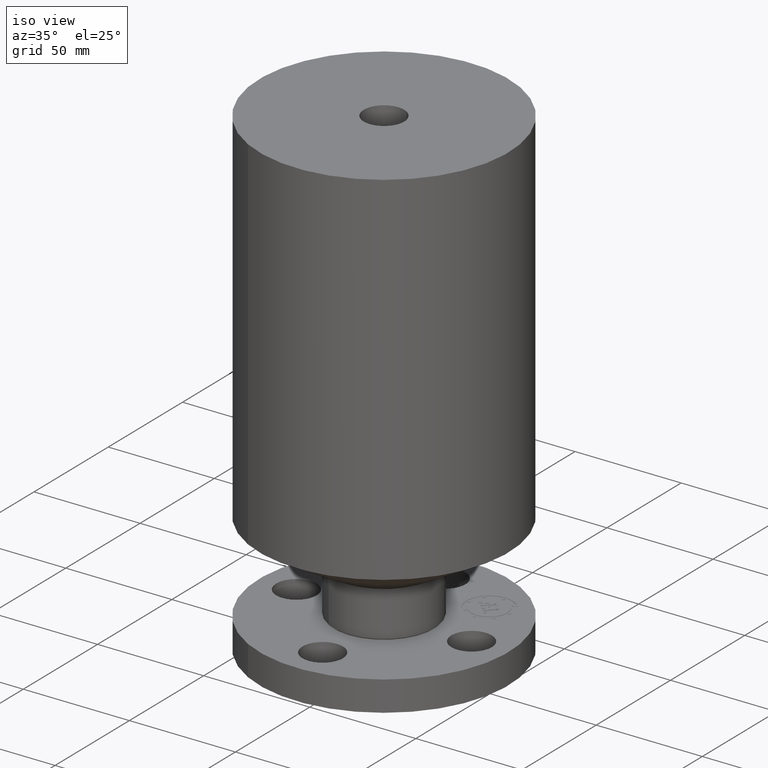
[diagram: clean part render]
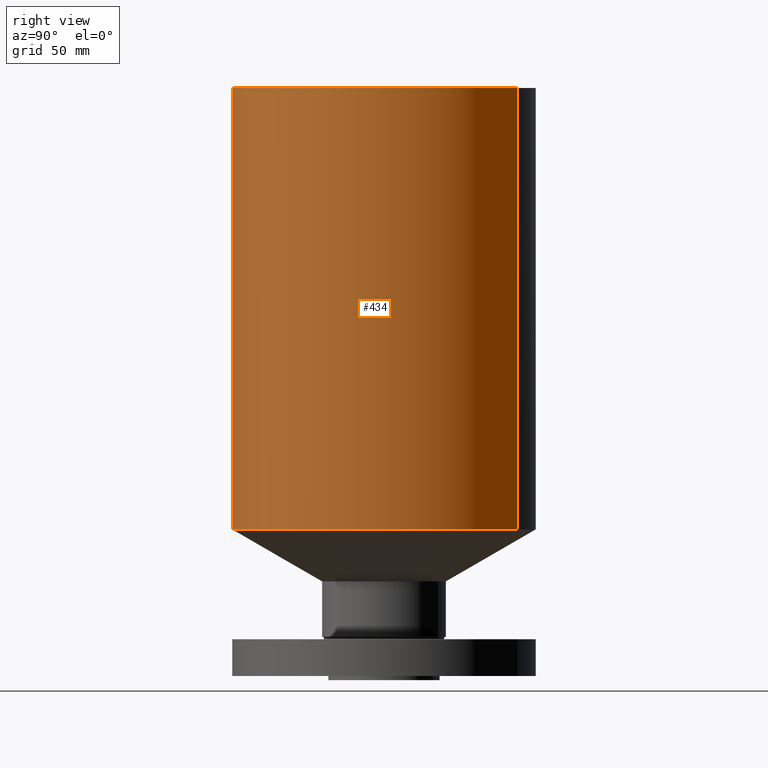
[diagram: tour spotlight — one face highlighted and labeled with its STEP entity id]
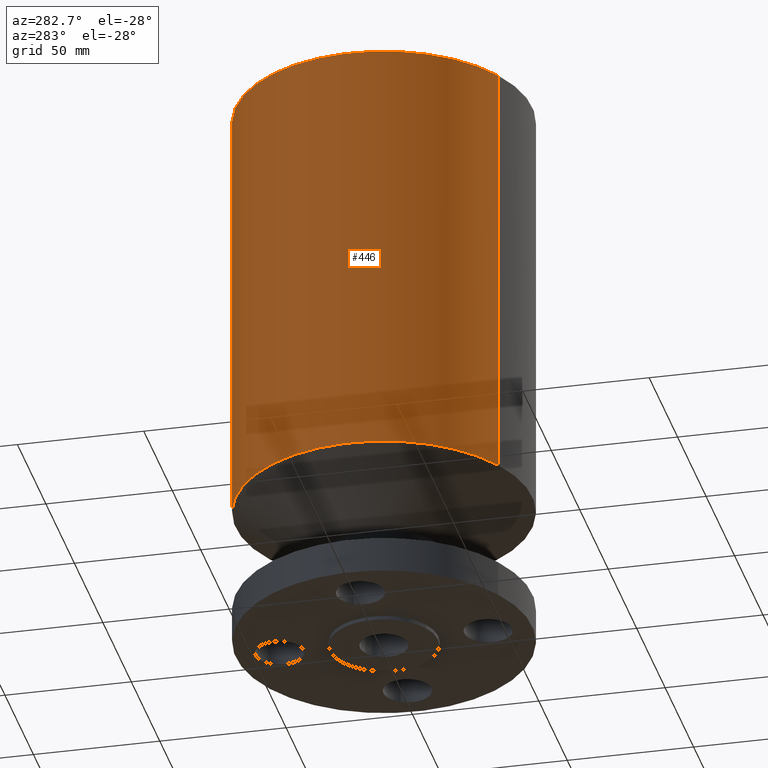
[diagram: tour spotlight — one face highlighted and labeled with its STEP entity id]
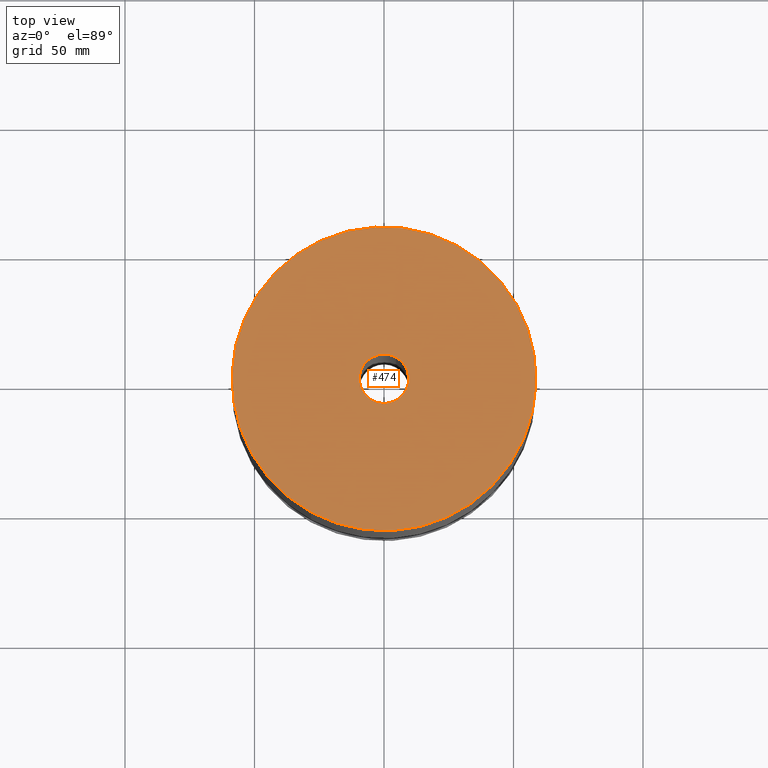
[diagram: tour spotlight — one face highlighted and labeled with its STEP entity id]
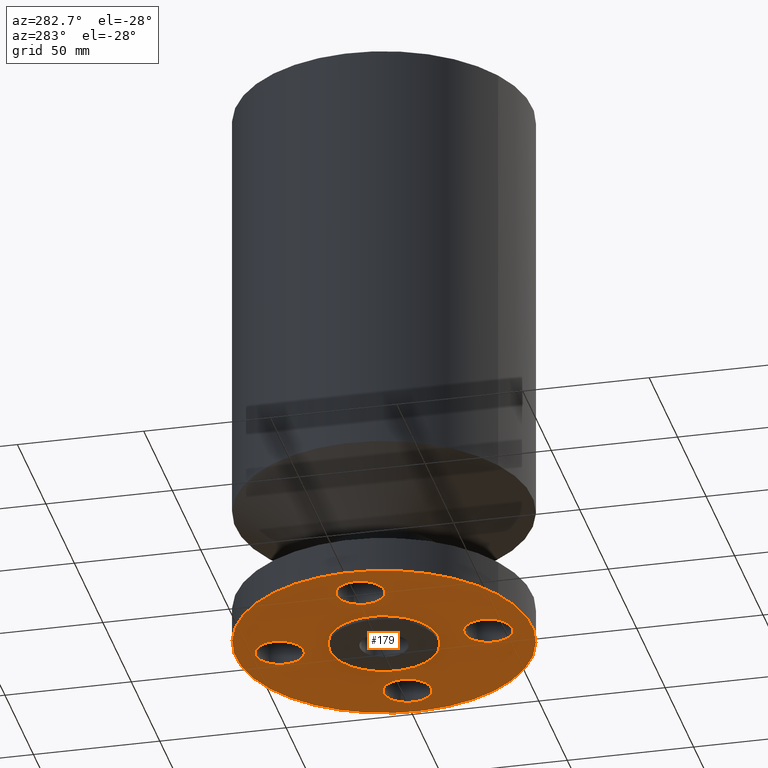
[diagram: tour spotlight — one face highlighted and labeled with its STEP entity id]
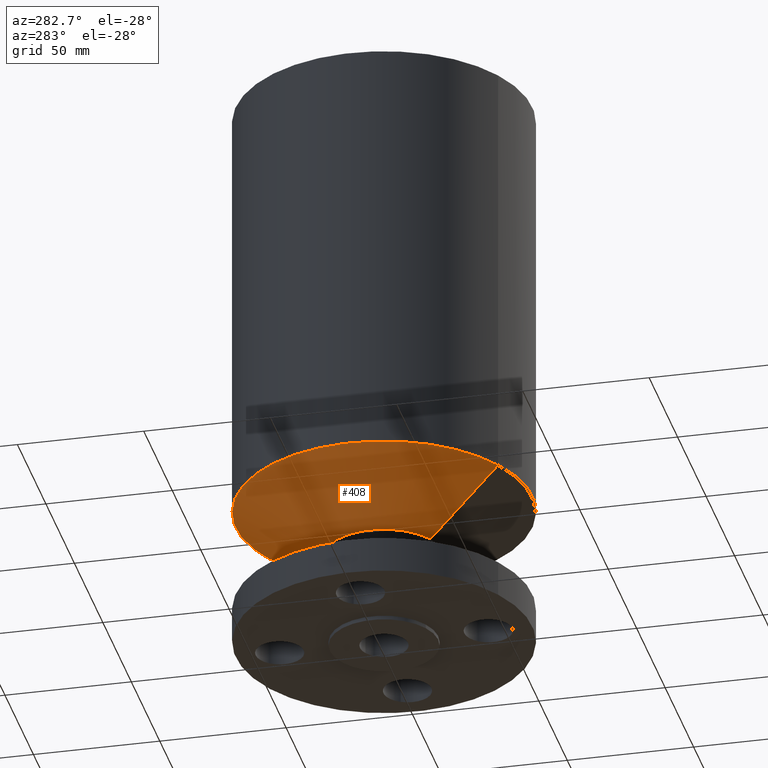
[diagram: tour spotlight — one face highlighted and labeled with its STEP entity id]
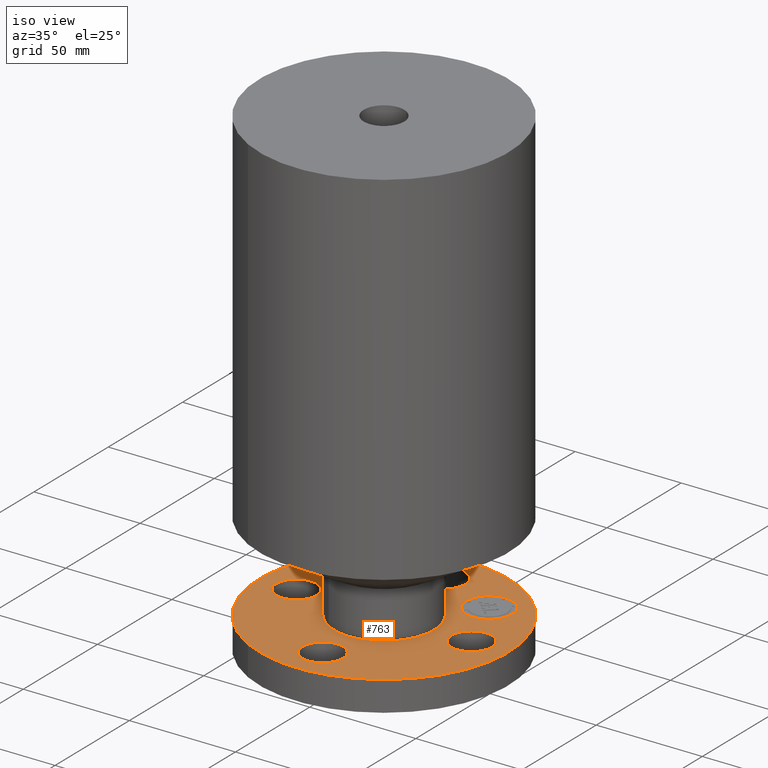
[diagram: tour spotlight — one face highlighted and labeled with its STEP entity id]
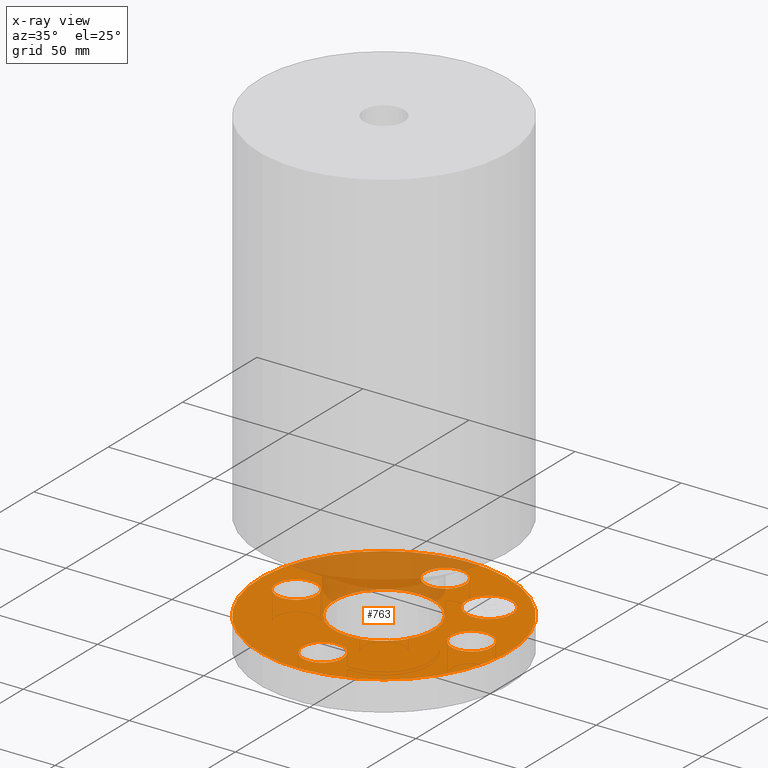
[diagram: x-ray of the same camera — body ghosted, this tour face saturated]
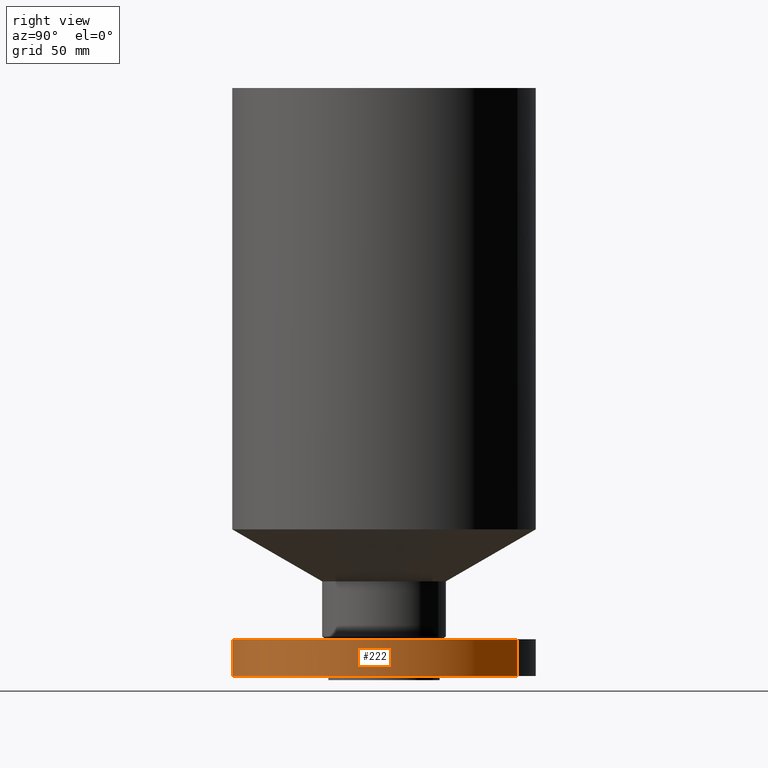
[diagram: tour spotlight — one face highlighted and labeled with its STEP entity id]
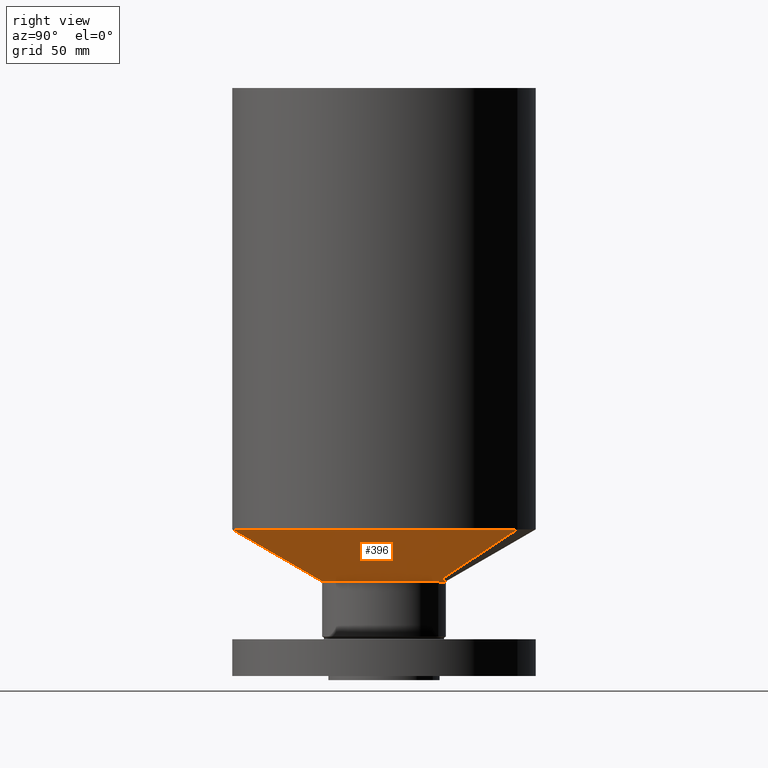
[diagram: tour spotlight — one face highlighted and labeled with its STEP entity id]
A machine part: a face-by-face anatomy tour. The part has 413 B-rep faces; the first image is the clean iso view, then the 8 largest visible faces are spotlighted one at a time (largest first), each with its STEP entity span.

Face 1 — right view, entity #434. In plain terms, the highlighted cylindrical surface (partial cylindrical patch) has radius 58.674 mm, axis along (0, 0, -1).
Definition (entity closure, byte-faithful):
#183=AXIS2_PLACEMENT_3D('Cylinder Axis2P3D',#180,#181,#182) ;
#380=AXIS2_PLACEMENT_3D('Circle Axis2P3D',#378,#379,$) ;
#418=AXIS2_PLACEMENT_3D('Circle Axis2P3D',#416,#417,$) ;
#180=CARTESIAN_POINT('Axis2P3D Location',(0.,0.,4.43750000002)) ;
#375=CARTESIAN_POINT('Vertex',(1.10747299418,2.02721571797,2.2284698688)) ;
#378=CARTESIAN_POINT('Axis2P3D Location',(0.,0.,2.2284698688)) ;
#382=CARTESIAN_POINT('Vertex',(-1.10747299418,-2.02721571797,2.2284698688)) ;
#409=CARTESIAN_POINT('Line Origine',(1.10747299418,2.02721571797,5.58298493442)) ;
#413=CARTESIAN_POINT('Vertex',(1.10747299418,2.02721571797,8.93750000004)) ;
#416=CARTESIAN_POINT('Axis2P3D Location',(0.,0.,8.93750000004)) ;
#420=CARTESIAN_POINT('Vertex',(-1.10747299418,-2.02721571797,8.93750000004)) ;
#423=CARTESIAN_POINT('Line Origine',(-1.10747299418,-2.02721571797,5.58298493442)) ;
#181=DIRECTION('Axis2P3D Direction',(0.,0.,-0.0393700787402)) ;
#182=DIRECTION('Axis2P3D XDirection',(-0.0188750212049,-0.0345504945626,0.)) ;
#379=DIRECTION('Axis2P3D Direction',(-0.,0.,0.0393700787402)) ;
#410=DIRECTION('Vector Direction',(0.,0.,-0.0393700787402)) ;
#417=DIRECTION('Axis2P3D Direction',(0.,0.,-0.0393700787402)) ;
#424=DIRECTION('Vector Direction',(0.,0.,-0.0393700787402)) ;
#411=VECTOR('Line Direction',#410,0.0393700787402) ;
#425=VECTOR('Line Direction',#424,0.0393700787402) ;
#429=ORIENTED_EDGE('',*,*,#384,.F.) ;
#430=ORIENTED_EDGE('',*,*,#415,.T.) ;
#431=ORIENTED_EDGE('',*,*,#422,.T.) ;
#432=ORIENTED_EDGE('',*,*,#427,.F.) ;
#434=ADVANCED_FACE('PartBody',(#433),#184,.T.) ;
#381=CIRCLE('generated circle',#380,2.31000000001) ;
#419=CIRCLE('generated circle',#418,2.31000000001) ;
#184=CYLINDRICAL_SURFACE('generated cylinder',#183,2.31000000001) ;
#384=EDGE_CURVE('',#376,#383,#381,.F.) ;
#415=EDGE_CURVE('',#376,#414,#412,.F.) ;
#422=EDGE_CURVE('',#414,#421,#419,.T.) ;
#427=EDGE_CURVE('',#383,#421,#426,.F.) ;
#428=EDGE_LOOP('',(#429,#430,#431,#432)) ;
#433=FACE_OUTER_BOUND('',#428,.T.) ;
#412=LINE('Line',#409,#411) ;
#426=LINE('Line',#423,#425) ;
#376=VERTEX_POINT('',#375) ;
#383=VERTEX_POINT('',#382) ;
#414=VERTEX_POINT('',#413) ;
#421=VERTEX_POINT('',#420) ;

Face 2 — auxiliary view, entity #446. In plain terms, the highlighted cylindrical surface (partial cylindrical patch) has radius 58.674 mm, axis along (0, 0, -1).
Definition (entity closure, byte-faithful):
#183=AXIS2_PLACEMENT_3D('Cylinder Axis2P3D',#180,#181,#182) ;
#399=AXIS2_PLACEMENT_3D('Circle Axis2P3D',#397,#398,$) ;
#437=AXIS2_PLACEMENT_3D('Circle Axis2P3D',#435,#436,$) ;
#180=CARTESIAN_POINT('Axis2P3D Location',(0.,0.,4.43750000002)) ;
#375=CARTESIAN_POINT('Vertex',(1.10747299418,2.02721571797,2.2284698688)) ;
#382=CARTESIAN_POINT('Vertex',(-1.10747299418,-2.02721571797,2.2284698688)) ;
#397=CARTESIAN_POINT('Axis2P3D Location',(0.,0.,2.2284698688)) ;
#409=CARTESIAN_POINT('Line Origine',(1.10747299418,2.02721571797,5.58298493442)) ;
#413=CARTESIAN_POINT('Vertex',(1.10747299418,2.02721571797,8.93750000004)) ;
#420=CARTESIAN_POINT('Vertex',(-1.10747299418,-2.02721571797,8.93750000004)) ;
#423=CARTESIAN_POINT('Line Origine',(-1.10747299418,-2.02721571797,5.58298493442)) ;
#435=CARTESIAN_POINT('Axis2P3D Location',(0.,0.,8.93750000004)) ;
#181=DIRECTION('Axis2P3D Direction',(0.,0.,-0.0393700787402)) ;
#182=DIRECTION('Axis2P3D XDirection',(-0.0188750212049,-0.0345504945626,0.)) ;
#398=DIRECTION('Axis2P3D Direction',(-0.,0.,0.0393700787402)) ;
#410=DIRECTION('Vector Direction',(0.,0.,-0.0393700787402)) ;
#424=DIRECTION('Vector Direction',(0.,0.,-0.0393700787402)) ;
#436=DIRECTION('Axis2P3D Direction',(0.,0.,-0.0393700787402)) ;
#411=VECTOR('Line Direction',#410,0.0393700787402) ;
#425=VECTOR('Line Direction',#424,0.0393700787402) ;
#441=ORIENTED_EDGE('',*,*,#401,.F.) ;
#442=ORIENTED_EDGE('',*,*,#427,.T.) ;
#443=ORIENTED_EDGE('',*,*,#439,.T.) ;
#444=ORIENTED_EDGE('',*,*,#415,.F.) ;
#446=ADVANCED_FACE('PartBody',(#445),#184,.T.) ;
#400=CIRCLE('generated circle',#399,2.31000000001) ;
#438=CIRCLE('generated circle',#437,2.31000000001) ;
#184=CYLINDRICAL_SURFACE('generated cylinder',#183,2.31000000001) ;
#401=EDGE_CURVE('',#383,#376,#400,.F.) ;
#415=EDGE_CURVE('',#376,#414,#412,.F.) ;
#427=EDGE_CURVE('',#383,#421,#426,.F.) ;
#439=EDGE_CURVE('',#421,#414,#438,.T.) ;
#440=EDGE_LOOP('',(#441,#442,#443,#444)) ;
#445=FACE_OUTER_BOUND('',#440,.T.) ;
#412=LINE('Line',#409,#411) ;
#426=LINE('Line',#423,#425) ;
#376=VERTEX_POINT('',#375) ;
#383=VERTEX_POINT('',#382) ;
#414=VERTEX_POINT('',#413) ;
#421=VERTEX_POINT('',#420) ;

Face 3 — top view, entity #474. In plain terms, the highlighted planar face has unit normal (0, 0, -1).
Definition (entity closure, byte-faithful):
#418=AXIS2_PLACEMENT_3D('Circle Axis2P3D',#416,#417,$) ;
#437=AXIS2_PLACEMENT_3D('Circle Axis2P3D',#435,#436,$) ;
#450=AXIS2_PLACEMENT_3D('Plane Axis2P3D',#447,#448,#449) ;
#458=AXIS2_PLACEMENT_3D('Circle Axis2P3D',#456,#457,$) ;
#467=AXIS2_PLACEMENT_3D('Circle Axis2P3D',#465,#466,$) ;
#413=CARTESIAN_POINT('Vertex',(1.10747299418,2.02721571797,8.93750000004)) ;
#416=CARTESIAN_POINT('Axis2P3D Location',(0.,0.,8.93750000004)) ;
#420=CARTESIAN_POINT('Vertex',(-1.10747299418,-2.02721571797,8.93750000004)) ;
#435=CARTESIAN_POINT('Axis2P3D Location',(0.,0.,8.93750000004)) ;
#447=CARTESIAN_POINT('Axis2P3D Location',(0.,2.31000000001,8.93750000004)) ;
#456=CARTESIAN_POINT('Axis2P3D Location',(0.,0.,8.93750000004)) ;
#460=CARTESIAN_POINT('Vertex',(-0.179784576977,-0.32909346071,8.93750000004)) ;
#462=CARTESIAN_POINT('Vertex',(0.179784576977,0.32909346071,8.93750000004)) ;
#465=CARTESIAN_POINT('Axis2P3D Location',(0.,0.,8.93750000004)) ;
#417=DIRECTION('Axis2P3D Direction',(0.,0.,-0.0393700787402)) ;
#436=DIRECTION('Axis2P3D Direction',(0.,0.,-0.0393700787402)) ;
#448=DIRECTION('Axis2P3D Direction',(0.,0.,-0.0393700787402)) ;
#449=DIRECTION('Axis2P3D XDirection',(0.0393700787402,0.,0.)) ;
#457=DIRECTION('Axis2P3D Direction',(0.,0.,-0.0393700787402)) ;
#466=DIRECTION('Axis2P3D Direction',(0.,0.,-0.0393700787402)) ;
#453=ORIENTED_EDGE('',*,*,#422,.F.) ;
#454=ORIENTED_EDGE('',*,*,#439,.F.) ;
#471=ORIENTED_EDGE('',*,*,#464,.T.) ;
#472=ORIENTED_EDGE('',*,*,#469,.T.) ;
#473=FACE_BOUND('',#470,.T.) ;
#474=ADVANCED_FACE('PartBody',(#455,#473),#451,.F.) ;
#419=CIRCLE('generated circle',#418,2.31000000001) ;
#438=CIRCLE('generated circle',#437,2.31000000001) ;
#459=CIRCLE('generated circle',#458,0.375000000001) ;
#468=CIRCLE('generated circle',#467,0.375000000001) ;
#422=EDGE_CURVE('',#414,#421,#419,.T.) ;
#439=EDGE_CURVE('',#421,#414,#438,.T.) ;
#464=EDGE_CURVE('',#461,#463,#459,.T.) ;
#469=EDGE_CURVE('',#463,#461,#468,.T.) ;
#452=EDGE_LOOP('',(#453,#454)) ;
#470=EDGE_LOOP('',(#471,#472)) ;
#455=FACE_OUTER_BOUND('',#452,.T.) ;
#451=PLANE('',#450) ;
#414=VERTEX_POINT('',#413) ;
#421=VERTEX_POINT('',#420) ;
#461=VERTEX_POINT('',#460) ;
#463=VERTEX_POINT('',#462) ;

Face 4 — auxiliary view, entity #179. In plain terms, the highlighted planar face has unit normal (0, 0, -1).
Definition (entity closure, byte-faithful):
#51=AXIS2_PLACEMENT_3D('Circle Axis2P3D',#49,#50,$) ;
#78=AXIS2_PLACEMENT_3D('Plane Axis2P3D',#75,#76,#77) ;
#82=AXIS2_PLACEMENT_3D('Circle Axis2P3D',#80,#81,$) ;
#91=AXIS2_PLACEMENT_3D('Circle Axis2P3D',#89,#90,$) ;
#100=AXIS2_PLACEMENT_3D('Circle Axis2P3D',#98,#99,$) ;
#109=AXIS2_PLACEMENT_3D('Circle Axis2P3D',#107,#108,$) ;
#118=AXIS2_PLACEMENT_3D('Circle Axis2P3D',#116,#117,$) ;
#127=AXIS2_PLACEMENT_3D('Circle Axis2P3D',#125,#126,$) ;
#136=AXIS2_PLACEMENT_3D('Circle Axis2P3D',#134,#135,$) ;
#145=AXIS2_PLACEMENT_3D('Circle Axis2P3D',#143,#144,$) ;
#154=AXIS2_PLACEMENT_3D('Circle Axis2P3D',#152,#153,$) ;
#163=AXIS2_PLACEMENT_3D('Circle Axis2P3D',#161,#162,$) ;
#172=AXIS2_PLACEMENT_3D('Circle Axis2P3D',#170,#171,$) ;
#46=CARTESIAN_POINT('Vertex',(1.95409346072,0.179784576977,2.2401153548E-016)) ;
#49=CARTESIAN_POINT('Axis2P3D Location',(1.62500000001,0.,0.)) ;
#53=CARTESIAN_POINT('Vertex',(1.2959065393,-0.179784576977,2.2401153548E-016)) ;
#75=CARTESIAN_POINT('Axis2P3D Location',(0.,0.845000000003,0.)) ;
#80=CARTESIAN_POINT('Axis2P3D Location',(0.,0.,0.)) ;
#84=CARTESIAN_POINT('Vertex',(-1.10747299418,-2.02721571797,-5.59482469102E-016)) ;
#86=CARTESIAN_POINT('Vertex',(1.10747299418,2.02721571797,-5.59482469102E-016)) ;
#89=CARTESIAN_POINT('Axis2P3D Location',(0.,0.,0.)) ;
#98=CARTESIAN_POINT('Axis2P3D Location',(1.62500000001,0.,0.)) ;
#107=CARTESIAN_POINT('Axis2P3D Location',(0.,0.,0.)) ;
#111=CARTESIAN_POINT('Vertex',(0.405114580122,0.7415572648,0.)) ;
#113=CARTESIAN_POINT('Vertex',(-0.405114580122,-0.7415572648,0.)) ;
#116=CARTESIAN_POINT('Axis2P3D Location',(0.,0.,0.)) ;
#125=CARTESIAN_POINT('Axis2P3D Location',(-2.44773580232E-016,-1.62500000001,0.)) ;
#129=CARTESIAN_POINT('Vertex',(0.179784576977,-1.95409346072,0.)) ;
#131=CARTESIAN_POINT('Vertex',(-0.179784576977,-1.2959065393,0.)) ;
#134=CARTESIAN_POINT('Axis2P3D Location',(-1.39870617276E-016,-1.62500000001,0.)) ;
#143=CARTESIAN_POINT('Axis2P3D Location',(-1.62500000001,-1.39870617276E-016,0.)) ;
#147=CARTESIAN_POINT('Vertex',(-1.95409346072,-0.179784576977,0.)) ;
#149=CARTESIAN_POINT('Vertex',(-1.2959065393,0.179784576977,0.)) ;
#152=CARTESIAN_POINT('Axis2P3D Location',(-1.62500000001,-4.19611851827E-016,0.)) ;
#161=CARTESIAN_POINT('Axis2P3D Location',(-2.09805925913E-016,1.62500000001,0.)) ;
#165=CARTESIAN_POINT('Vertex',(-0.179784576977,1.95409346072,0.)) ;
#167=CARTESIAN_POINT('Vertex',(0.179784576977,1.2959065393,0.)) ;
#170=CARTESIAN_POINT('Axis2P3D Location',(-3.49676543189E-016,1.62500000001,0.)) ;
#50=DIRECTION('Axis2P3D Direction',(0.,-0.,0.0393700787402)) ;
#76=DIRECTION('Axis2P3D Direction',(0.,0.,-0.0393700787402)) ;
#77=DIRECTION('Axis2P3D XDirection',(0.0393700787402,0.,0.)) ;
#81=DIRECTION('Axis2P3D Direction',(0.,0.,-0.0393700787402)) ;
#90=DIRECTION('Axis2P3D Direction',(0.,0.,-0.0393700787402)) ;
#99=DIRECTION('Axis2P3D Direction',(0.,0.,-0.0393700787402)) ;
#108=DIRECTION('Axis2P3D Direction',(0.,0.,-0.0393700787402)) ;
#117=DIRECTION('Axis2P3D Direction',(0.,0.,-0.0393700787402)) ;
#126=DIRECTION('Axis2P3D Direction',(0.,0.,-0.0393700787402)) ;
#135=DIRECTION('Axis2P3D Direction',(0.,0.,-0.0393700787402)) ;
#144=DIRECTION('Axis2P3D Direction',(0.,0.,-0.0393700787402)) ;
#153=DIRECTION('Axis2P3D Direction',(0.,0.,-0.0393700787402)) ;
#162=DIRECTION('Axis2P3D Direction',(0.,0.,-0.0393700787402)) ;
#171=DIRECTION('Axis2P3D Direction',(0.,0.,-0.0393700787402)) ;
#95=ORIENTED_EDGE('',*,*,#88,.T.) ;
#96=ORIENTED_EDGE('',*,*,#93,.T.) ;
#104=ORIENTED_EDGE('',*,*,#102,.F.) ;
#105=ORIENTED_EDGE('',*,*,#55,.F.) ;
#122=ORIENTED_EDGE('',*,*,#115,.F.) ;
#123=ORIENTED_EDGE('',*,*,#120,.F.) ;
#140=ORIENTED_EDGE('',*,*,#133,.F.) ;
#141=ORIENTED_EDGE('',*,*,#138,.F.) ;
#158=ORIENTED_EDGE('',*,*,#151,.F.) ;
#159=ORIENTED_EDGE('',*,*,#156,.F.) ;
#176=ORIENTED_EDGE('',*,*,#169,.F.) ;
#177=ORIENTED_EDGE('',*,*,#174,.F.) ;
#106=FACE_BOUND('',#103,.T.) ;
#124=FACE_BOUND('',#121,.T.) ;
#142=FACE_BOUND('',#139,.T.) ;
#160=FACE_BOUND('',#157,.T.) ;
#178=FACE_BOUND('',#175,.T.) ;
#179=ADVANCED_FACE('PartBody',(#97,#106,#124,#142,#160,#178),#79,.T.) ;
#52=CIRCLE('generated circle',#51,0.375000000001) ;
#83=CIRCLE('generated circle',#82,2.31000000001) ;
#92=CIRCLE('generated circle',#91,2.31000000001) ;
#101=CIRCLE('generated circle',#100,0.375000000001) ;
#110=CIRCLE('generated circle',#109,0.845000000003) ;
#119=CIRCLE('generated circle',#118,0.845000000003) ;
#128=CIRCLE('generated circle',#127,0.375000000001) ;
#137=CIRCLE('generated circle',#136,0.375000000001) ;
#146=CIRCLE('generated circle',#145,0.375000000002) ;
#155=CIRCLE('generated circle',#154,0.375000000002) ;
#164=CIRCLE('generated circle',#163,0.375000000001) ;
#173=CIRCLE('generated circle',#172,0.375000000001) ;
#55=EDGE_CURVE('',#47,#54,#52,.F.) ;
#88=EDGE_CURVE('',#85,#87,#83,.T.) ;
#93=EDGE_CURVE('',#87,#85,#92,.T.) ;
#102=EDGE_CURVE('',#54,#47,#101,.T.) ;
#115=EDGE_CURVE('',#112,#114,#110,.T.) ;
#120=EDGE_CURVE('',#114,#112,#119,.T.) ;
#133=EDGE_CURVE('',#130,#132,#128,.T.) ;
#138=EDGE_CURVE('',#132,#130,#137,.T.) ;
#151=EDGE_CURVE('',#148,#150,#146,.T.) ;
#156=EDGE_CURVE('',#150,#148,#155,.T.) ;
#169=EDGE_CURVE('',#166,#168,#164,.T.) ;
#174=EDGE_CURVE('',#168,#166,#173,.T.) ;
#94=EDGE_LOOP('',(#95,#96)) ;
#103=EDGE_LOOP('',(#104,#105)) ;
#121=EDGE_LOOP('',(#122,#123)) ;
#139=EDGE_LOOP('',(#140,#141)) ;
#157=EDGE_LOOP('',(#158,#159)) ;
#175=EDGE_LOOP('',(#176,#177)) ;
#97=FACE_OUTER_BOUND('',#94,.T.) ;
#79=PLANE('',#78) ;
#47=VERTEX_POINT('',#46) ;
#54=VERTEX_POINT('',#53) ;
#85=VERTEX_POINT('',#84) ;
#87=VERTEX_POINT('',#86) ;
#112=VERTEX_POINT('',#111) ;
#114=VERTEX_POINT('',#113) ;
#130=VERTEX_POINT('',#129) ;
#132=VERTEX_POINT('',#131) ;
#148=VERTEX_POINT('',#147) ;
#150=VERTEX_POINT('',#149) ;
#166=VERTEX_POINT('',#165) ;
#168=VERTEX_POINT('',#167) ;

Face 5 — auxiliary view, entity #408. In plain terms, the highlighted conical surface has half-angle 60 deg.
Definition (entity closure, byte-faithful):
#356=AXIS2_PLACEMENT_3D('Circle Axis2P3D',#354,#355,$) ;
#369=AXIS2_PLACEMENT_3D('Cone Axis2P3D',#366,#367,#368) ;
#399=AXIS2_PLACEMENT_3D('Circle Axis2P3D',#397,#398,$) ;
#332=CARTESIAN_POINT('Vertex',(0.45066000629,0.82492760818,1.43750000001)) ;
#339=CARTESIAN_POINT('Vertex',(-0.45066000629,-0.82492760818,1.43750000001)) ;
#354=CARTESIAN_POINT('Axis2P3D Location',(0.,0.,1.43750000001)) ;
#366=CARTESIAN_POINT('Axis2P3D Location',(0.,0.,1.43750000001)) ;
#371=CARTESIAN_POINT('Line Origine',(0.779066500235,1.42607166308,1.8329849344)) ;
#375=CARTESIAN_POINT('Vertex',(1.10747299418,2.02721571797,2.2284698688)) ;
#382=CARTESIAN_POINT('Vertex',(-1.10747299418,-2.02721571797,2.2284698688)) ;
#385=CARTESIAN_POINT('Line Origine',(-0.779066500235,-1.42607166308,1.8329849344)) ;
#397=CARTESIAN_POINT('Axis2P3D Location',(0.,0.,2.2284698688)) ;
#355=DIRECTION('Axis2P3D Direction',(0.,0.,-0.0393700787402)) ;
#367=DIRECTION('Axis2P3D Direction',(-0.,-0.,0.0393700787402)) ;
#368=DIRECTION('Axis2P3D XDirection',(0.0188750212049,0.0345504945626,0.)) ;
#372=DIRECTION('Vector Direction',(0.0163462478604,0.0299216060045,0.0196850393701)) ;
#386=DIRECTION('Vector Direction',(-0.0163462478604,-0.0299216060045,0.0196850393701)) ;
#398=DIRECTION('Axis2P3D Direction',(-0.,0.,0.0393700787402)) ;
#373=VECTOR('Line Direction',#372,0.0393700787402) ;
#387=VECTOR('Line Direction',#386,0.0393700787402) ;
#403=ORIENTED_EDGE('',*,*,#358,.F.) ;
#404=ORIENTED_EDGE('',*,*,#389,.T.) ;
#405=ORIENTED_EDGE('',*,*,#401,.T.) ;
#406=ORIENTED_EDGE('',*,*,#377,.F.) ;
#408=ADVANCED_FACE('PartBody',(#407),#370,.T.) ;
#357=CIRCLE('generated circle',#356,0.940000000004) ;
#400=CIRCLE('generated circle',#399,2.31000000001) ;
#370=CONICAL_SURFACE('Cone',#369,0.940000000004,1.0471975512) ;
#358=EDGE_CURVE('',#340,#333,#357,.T.) ;
#377=EDGE_CURVE('',#333,#376,#374,.T.) ;
#389=EDGE_CURVE('',#340,#383,#388,.T.) ;
#401=EDGE_CURVE('',#383,#376,#400,.F.) ;
#402=EDGE_LOOP('',(#403,#404,#405,#406)) ;
#407=FACE_OUTER_BOUND('',#402,.T.) ;
#374=LINE('Line',#371,#373) ;
#388=LINE('Line',#385,#387) ;
#333=VERTEX_POINT('',#332) ;
#340=VERTEX_POINT('',#339) ;
#376=VERTEX_POINT('',#375) ;
#383=VERTEX_POINT('',#382) ;

Face 6 — iso view, entity #763. An x-ray twin of the same camera follows (body ghosted, this face saturated) — the face is partly hidden behind the body. In plain terms, the highlighted planar face has unit normal (0, 0, -1).
Definition (entity closure, byte-faithful):
#65=AXIS2_PLACEMENT_3D('Circle Axis2P3D',#63,#64,$) ;
#194=AXIS2_PLACEMENT_3D('Circle Axis2P3D',#192,#193,$) ;
#213=AXIS2_PLACEMENT_3D('Circle Axis2P3D',#211,#212,$) ;
#230=AXIS2_PLACEMENT_3D('Circle Axis2P3D',#228,#229,$) ;
#265=AXIS2_PLACEMENT_3D('Circle Axis2P3D',#263,#264,$) ;
#577=AXIS2_PLACEMENT_3D('Circle Axis2P3D',#575,#576,$) ;
#608=AXIS2_PLACEMENT_3D('Circle Axis2P3D',#606,#607,$) ;
#620=AXIS2_PLACEMENT_3D('Circle Axis2P3D',#618,#619,$) ;
#651=AXIS2_PLACEMENT_3D('Circle Axis2P3D',#649,#650,$) ;
#663=AXIS2_PLACEMENT_3D('Circle Axis2P3D',#661,#662,$) ;
#694=AXIS2_PLACEMENT_3D('Circle Axis2P3D',#692,#693,$) ;
#706=AXIS2_PLACEMENT_3D('Circle Axis2P3D',#704,#705,$) ;
#719=AXIS2_PLACEMENT_3D('Plane Axis2P3D',#716,#717,#718) ;
#747=AXIS2_PLACEMENT_3D('Circle Axis2P3D',#745,#746,$) ;
#756=AXIS2_PLACEMENT_3D('Circle Axis2P3D',#754,#755,$) ;
#44=CARTESIAN_POINT('Vertex',(1.95409346072,0.179784576977,0.557500000002)) ;
#60=CARTESIAN_POINT('Vertex',(1.2959065393,-0.179784576977,0.557500000002)) ;
#63=CARTESIAN_POINT('Axis2P3D Location',(1.62500000001,0.,0.557500000002)) ;
#189=CARTESIAN_POINT('Vertex',(-1.10747299418,-2.02721571797,0.557500000002)) ;
#192=CARTESIAN_POINT('Axis2P3D Location',(0.,0.,0.557500000002)) ;
#196=CARTESIAN_POINT('Vertex',(1.10747299418,2.02721571797,0.557500000002)) ;
#211=CARTESIAN_POINT('Axis2P3D Location',(0.,0.,0.557500000002)) ;
#228=CARTESIAN_POINT('Axis2P3D Location',(0.,0.,0.557500000002)) ;
#232=CARTESIAN_POINT('Vertex',(0.443468623211,0.811763869752,0.557500000002)) ;
#234=CARTESIAN_POINT('Vertex',(-0.443468623211,-0.811763869752,0.557500000002)) ;
#263=CARTESIAN_POINT('Axis2P3D Location',(0.,0.,0.557500000002)) ;
#575=CARTESIAN_POINT('Axis2P3D Location',(1.62500000001,0.,0.557500000002)) ;
#596=CARTESIAN_POINT('Vertex',(0.179784576977,-1.95409346072,0.557500000002)) ;
#603=CARTESIAN_POINT('Vertex',(-0.179784576977,-1.2959065393,0.557500000002)) ;
#606=CARTESIAN_POINT('Axis2P3D Location',(-1.8023868212E-016,-1.62500000001,0.557500000002)) ;
#618=CARTESIAN_POINT('Axis2P3D Location',(-1.8023868212E-016,-1.62500000001,0.557500000002)) ;
#639=CARTESIAN_POINT('Vertex',(-1.95409346072,-0.179784576977,0.557500000002)) ;
#646=CARTESIAN_POINT('Vertex',(-1.2959065393,0.179784576977,0.557500000002)) ;
#649=CARTESIAN_POINT('Axis2P3D Location',(-1.62500000001,-1.99005104862E-016,0.557500000002)) ;
#661=CARTESIAN_POINT('Axis2P3D Location',(-1.62500000001,-1.99005104862E-016,0.557500000002)) ;
#682=CARTESIAN_POINT('Vertex',(-0.179784576977,1.95409346072,0.557500000002)) ;
#689=CARTESIAN_POINT('Vertex',(0.179784576977,1.2959065393,0.557500000002)) ;
#692=CARTESIAN_POINT('Axis2P3D Location',(-2.98507657293E-016,1.62500000001,0.557500000002)) ;
#704=CARTESIAN_POINT('Axis2P3D Location',(-2.98507657293E-016,1.62500000001,0.557500000002)) ;
#716=CARTESIAN_POINT('Axis2P3D Location',(0.,2.31000000001,0.557500000002)) ;
#745=CARTESIAN_POINT('Axis2P3D Location',(1.14904851943,1.14904851943,0.557500000002)) ;
#749=CARTESIAN_POINT('Vertex',(1.44956889843,0.848528140432,0.557500000002)) ;
#751=CARTESIAN_POINT('Vertex',(0.848528140432,1.44956889843,0.557500000002)) ;
#754=CARTESIAN_POINT('Axis2P3D Location',(1.14904851943,1.14904851943,0.557500000002)) ;
#64=DIRECTION('Axis2P3D Direction',(0.,-0.,0.0393700787402)) ;
#193=DIRECTION('Axis2P3D Direction',(0.,0.,-0.0393700787402)) ;
#212=DIRECTION('Axis2P3D Direction',(0.,0.,-0.0393700787402)) ;
#229=DIRECTION('Axis2P3D Direction',(0.,0.,-0.0393700787402)) ;
#264=DIRECTION('Axis2P3D Direction',(0.,0.,-0.0393700787402)) ;
#576=DIRECTION('Axis2P3D Direction',(0.,-0.,0.0393700787402)) ;
#607=DIRECTION('Axis2P3D Direction',(-0.,0.,0.0393700787402)) ;
#619=DIRECTION('Axis2P3D Direction',(-0.,0.,0.0393700787402)) ;
#650=DIRECTION('Axis2P3D Direction',(0.,0.,0.0393700787402)) ;
#662=DIRECTION('Axis2P3D Direction',(0.,0.,0.0393700787402)) ;
#693=DIRECTION('Axis2P3D Direction',(0.,0.,0.0393700787402)) ;
#705=DIRECTION('Axis2P3D Direction',(0.,0.,0.0393700787402)) ;
#717=DIRECTION('Axis2P3D Direction',(0.,0.,-0.0393700787402)) ;
#718=DIRECTION('Axis2P3D XDirection',(0.0393700787402,0.,0.)) ;
#746=DIRECTION('Axis2P3D Direction',(0.,0.,-0.0393700787402)) ;
#755=DIRECTION('Axis2P3D Direction',(0.,0.,-0.0393700787402)) ;
#722=ORIENTED_EDGE('',*,*,#215,.F.) ;
#723=ORIENTED_EDGE('',*,*,#198,.F.) ;
#726=ORIENTED_EDGE('',*,*,#67,.T.) ;
#727=ORIENTED_EDGE('',*,*,#579,.T.) ;
#730=ORIENTED_EDGE('',*,*,#267,.T.) ;
#731=ORIENTED_EDGE('',*,*,#236,.T.) ;
#734=ORIENTED_EDGE('',*,*,#622,.T.) ;
#735=ORIENTED_EDGE('',*,*,#610,.T.) ;
#738=ORIENTED_EDGE('',*,*,#665,.T.) ;
#739=ORIENTED_EDGE('',*,*,#653,.T.) ;
#742=ORIENTED_EDGE('',*,*,#708,.T.) ;
#743=ORIENTED_EDGE('',*,*,#696,.T.) ;
#760=ORIENTED_EDGE('',*,*,#753,.F.) ;
#761=ORIENTED_EDGE('',*,*,#758,.F.) ;
#728=FACE_BOUND('',#725,.T.) ;
#732=FACE_BOUND('',#729,.T.) ;
#736=FACE_BOUND('',#733,.T.) ;
#740=FACE_BOUND('',#737,.T.) ;
#744=FACE_BOUND('',#741,.T.) ;
#762=FACE_BOUND('',#759,.T.) ;
#763=ADVANCED_FACE('PartBody',(#724,#728,#732,#736,#740,#744,#762),#720,.F.) ;
#66=CIRCLE('generated circle',#65,0.375000000001) ;
#195=CIRCLE('generated circle',#194,2.31000000001) ;
#214=CIRCLE('generated circle',#213,2.31000000001) ;
#231=CIRCLE('generated circle',#230,0.925000000004) ;
#266=CIRCLE('generated circle',#265,0.925000000004) ;
#578=CIRCLE('generated circle',#577,0.375000000001) ;
#609=CIRCLE('generated circle',#608,0.375000000001) ;
#621=CIRCLE('generated circle',#620,0.375000000001) ;
#652=CIRCLE('generated circle',#651,0.375000000002) ;
#664=CIRCLE('generated circle',#663,0.375000000002) ;
#695=CIRCLE('generated circle',#694,0.375000000001) ;
#707=CIRCLE('generated circle',#706,0.375000000001) ;
#748=CIRCLE('generated circle',#747,0.424999995752) ;
#757=CIRCLE('generated circle',#756,0.424999995752) ;
#67=EDGE_CURVE('',#45,#61,#66,.F.) ;
#198=EDGE_CURVE('',#190,#197,#195,.T.) ;
#215=EDGE_CURVE('',#197,#190,#214,.T.) ;
#236=EDGE_CURVE('',#233,#235,#231,.T.) ;
#267=EDGE_CURVE('',#235,#233,#266,.T.) ;
#579=EDGE_CURVE('',#61,#45,#578,.F.) ;
#610=EDGE_CURVE('',#597,#604,#609,.F.) ;
#622=EDGE_CURVE('',#604,#597,#621,.F.) ;
#653=EDGE_CURVE('',#640,#647,#652,.F.) ;
#665=EDGE_CURVE('',#647,#640,#664,.F.) ;
#696=EDGE_CURVE('',#683,#690,#695,.F.) ;
#708=EDGE_CURVE('',#690,#683,#707,.F.) ;
#753=EDGE_CURVE('',#750,#752,#748,.F.) ;
#758=EDGE_CURVE('',#752,#750,#757,.F.) ;
#721=EDGE_LOOP('',(#722,#723)) ;
#725=EDGE_LOOP('',(#726,#727)) ;
#729=EDGE_LOOP('',(#730,#731)) ;
#733=EDGE_LOOP('',(#734,#735)) ;
#737=EDGE_LOOP('',(#738,#739)) ;
#741=EDGE_LOOP('',(#742,#743)) ;
#759=EDGE_LOOP('',(#760,#761)) ;
#724=FACE_OUTER_BOUND('',#721,.T.) ;
#720=PLANE('',#719) ;
#45=VERTEX_POINT('',#44) ;
#61=VERTEX_POINT('',#60) ;
#190=VERTEX_POINT('',#189) ;
#197=VERTEX_POINT('',#196) ;
#233=VERTEX_POINT('',#232) ;
#235=VERTEX_POINT('',#234) ;
#597=VERTEX_POINT('',#596) ;
#604=VERTEX_POINT('',#603) ;
#640=VERTEX_POINT('',#639) ;
#647=VERTEX_POINT('',#646) ;
#683=VERTEX_POINT('',#682) ;
#690=VERTEX_POINT('',#689) ;
#750=VERTEX_POINT('',#749) ;
#752=VERTEX_POINT('',#751) ;

Face 7 — right view, entity #222. In plain terms, the highlighted cylindrical surface (partial cylindrical patch) has radius 58.674 mm, axis along (0, 0, -1).
Definition (entity closure, byte-faithful):
#91=AXIS2_PLACEMENT_3D('Circle Axis2P3D',#89,#90,$) ;
#183=AXIS2_PLACEMENT_3D('Cylinder Axis2P3D',#180,#181,#182) ;
#213=AXIS2_PLACEMENT_3D('Circle Axis2P3D',#211,#212,$) ;
#84=CARTESIAN_POINT('Vertex',(-1.10747299418,-2.02721571797,-5.59482469102E-016)) ;
#86=CARTESIAN_POINT('Vertex',(1.10747299418,2.02721571797,-5.59482469102E-016)) ;
#89=CARTESIAN_POINT('Axis2P3D Location',(0.,0.,0.)) ;
#180=CARTESIAN_POINT('Axis2P3D Location',(0.,0.,4.43750000002)) ;
#185=CARTESIAN_POINT('Line Origine',(-1.10747299418,-2.02721571797,5.58298493442)) ;
#189=CARTESIAN_POINT('Vertex',(-1.10747299418,-2.02721571797,0.557500000002)) ;
#196=CARTESIAN_POINT('Vertex',(1.10747299418,2.02721571797,0.557500000002)) ;
#199=CARTESIAN_POINT('Line Origine',(1.10747299418,2.02721571797,5.58298493442)) ;
#211=CARTESIAN_POINT('Axis2P3D Location',(0.,0.,0.557500000002)) ;
#90=DIRECTION('Axis2P3D Direction',(0.,0.,-0.0393700787402)) ;
#181=DIRECTION('Axis2P3D Direction',(0.,0.,-0.0393700787402)) ;
#182=DIRECTION('Axis2P3D XDirection',(-0.0188750212049,-0.0345504945626,0.)) ;
#186=DIRECTION('Vector Direction',(0.,0.,-0.0393700787402)) ;
#200=DIRECTION('Vector Direction',(0.,0.,-0.0393700787402)) ;
#212=DIRECTION('Axis2P3D Direction',(0.,0.,-0.0393700787402)) ;
#187=VECTOR('Line Direction',#186,0.0393700787402) ;
#201=VECTOR('Line Direction',#200,0.0393700787402) ;
#217=ORIENTED_EDGE('',*,*,#93,.F.) ;
#218=ORIENTED_EDGE('',*,*,#203,.T.) ;
#219=ORIENTED_EDGE('',*,*,#215,.T.) ;
#220=ORIENTED_EDGE('',*,*,#191,.F.) ;
#222=ADVANCED_FACE('PartBody',(#221),#184,.T.) ;
#92=CIRCLE('generated circle',#91,2.31000000001) ;
#214=CIRCLE('generated circle',#213,2.31000000001) ;
#184=CYLINDRICAL_SURFACE('generated cylinder',#183,2.31000000001) ;
#93=EDGE_CURVE('',#87,#85,#92,.T.) ;
#191=EDGE_CURVE('',#85,#190,#188,.F.) ;
#203=EDGE_CURVE('',#87,#197,#202,.F.) ;
#215=EDGE_CURVE('',#197,#190,#214,.T.) ;
#216=EDGE_LOOP('',(#217,#218,#219,#220)) ;
#221=FACE_OUTER_BOUND('',#216,.T.) ;
#188=LINE('Line',#185,#187) ;
#202=LINE('Line',#199,#201) ;
#85=VERTEX_POINT('',#84) ;
#87=VERTEX_POINT('',#86) ;
#190=VERTEX_POINT('',#189) ;
#197=VERTEX_POINT('',#196) ;

Face 8 — right view, entity #396. In plain terms, the highlighted conical surface has half-angle 60 deg.
Definition (entity closure, byte-faithful):
#337=AXIS2_PLACEMENT_3D('Circle Axis2P3D',#335,#336,$) ;
#369=AXIS2_PLACEMENT_3D('Cone Axis2P3D',#366,#367,#368) ;
#380=AXIS2_PLACEMENT_3D('Circle Axis2P3D',#378,#379,$) ;
#332=CARTESIAN_POINT('Vertex',(0.45066000629,0.82492760818,1.43750000001)) ;
#335=CARTESIAN_POINT('Axis2P3D Location',(0.,0.,1.43750000001)) ;
#339=CARTESIAN_POINT('Vertex',(-0.45066000629,-0.82492760818,1.43750000001)) ;
#366=CARTESIAN_POINT('Axis2P3D Location',(0.,0.,1.43750000001)) ;
#371=CARTESIAN_POINT('Line Origine',(0.779066500235,1.42607166308,1.8329849344)) ;
#375=CARTESIAN_POINT('Vertex',(1.10747299418,2.02721571797,2.2284698688)) ;
#378=CARTESIAN_POINT('Axis2P3D Location',(0.,0.,2.2284698688)) ;
#382=CARTESIAN_POINT('Vertex',(-1.10747299418,-2.02721571797,2.2284698688)) ;
#385=CARTESIAN_POINT('Line Origine',(-0.779066500235,-1.42607166308,1.8329849344)) ;
#336=DIRECTION('Axis2P3D Direction',(0.,0.,-0.0393700787402)) ;
#367=DIRECTION('Axis2P3D Direction',(-0.,-0.,0.0393700787402)) ;
#368=DIRECTION('Axis2P3D XDirection',(0.0188750212049,0.0345504945626,0.)) ;
#372=DIRECTION('Vector Direction',(0.0163462478604,0.0299216060045,0.0196850393701)) ;
#379=DIRECTION('Axis2P3D Direction',(-0.,0.,0.0393700787402)) ;
#386=DIRECTION('Vector Direction',(-0.0163462478604,-0.0299216060045,0.0196850393701)) ;
#373=VECTOR('Line Direction',#372,0.0393700787402) ;
#387=VECTOR('Line Direction',#386,0.0393700787402) ;
#391=ORIENTED_EDGE('',*,*,#341,.F.) ;
#392=ORIENTED_EDGE('',*,*,#377,.T.) ;
#393=ORIENTED_EDGE('',*,*,#384,.T.) ;
#394=ORIENTED_EDGE('',*,*,#389,.F.) ;
#396=ADVANCED_FACE('PartBody',(#395),#370,.T.) ;
#338=CIRCLE('generated circle',#337,0.940000000004) ;
#381=CIRCLE('generated circle',#380,2.31000000001) ;
#370=CONICAL_SURFACE('Cone',#369,0.940000000004,1.0471975512) ;
#341=EDGE_CURVE('',#333,#340,#338,.T.) ;
#377=EDGE_CURVE('',#333,#376,#374,.T.) ;
#384=EDGE_CURVE('',#376,#383,#381,.F.) ;
#389=EDGE_CURVE('',#340,#383,#388,.T.) ;
#390=EDGE_LOOP('',(#391,#392,#393,#394)) ;
#395=FACE_OUTER_BOUND('',#390,.T.) ;
#374=LINE('Line',#371,#373) ;
#388=LINE('Line',#385,#387) ;
#333=VERTEX_POINT('',#332) ;
#340=VERTEX_POINT('',#339) ;
#376=VERTEX_POINT('',#375) ;
#383=VERTEX_POINT('',#382) ;